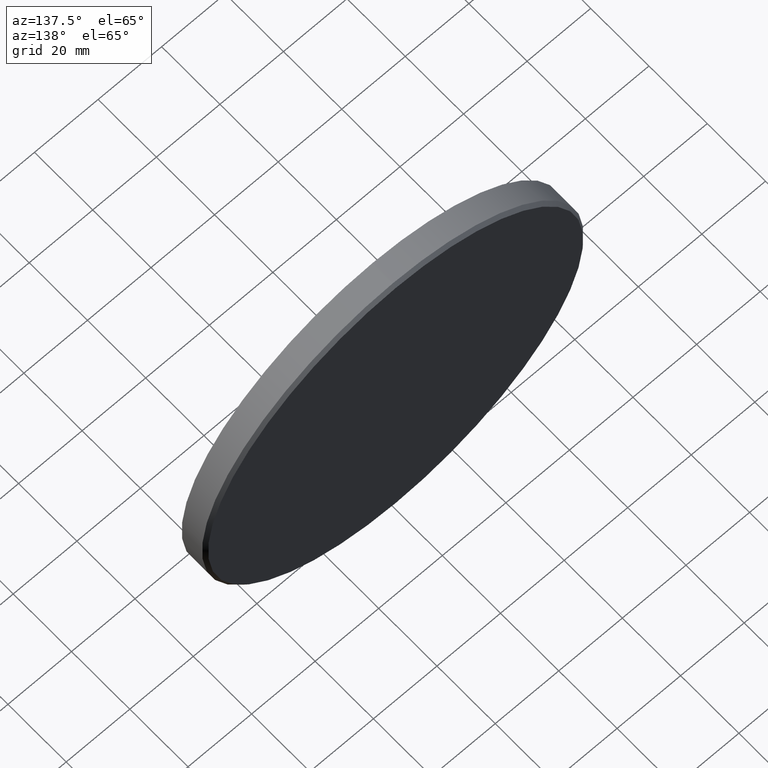
[diagram: clean part render]
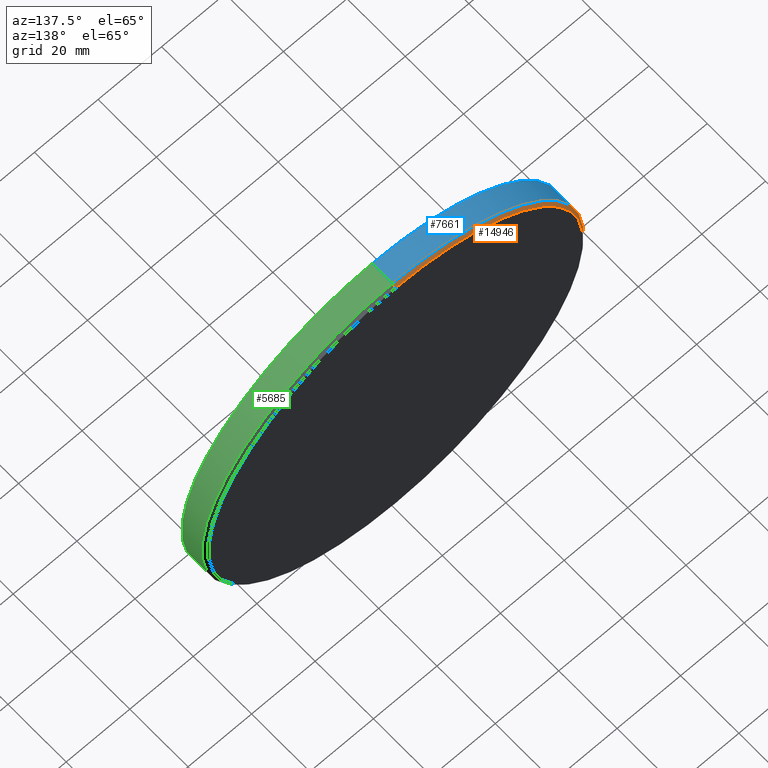
[diagram: same view with three faces highlighted in distinct colors, each labeled with its STEP entity id]
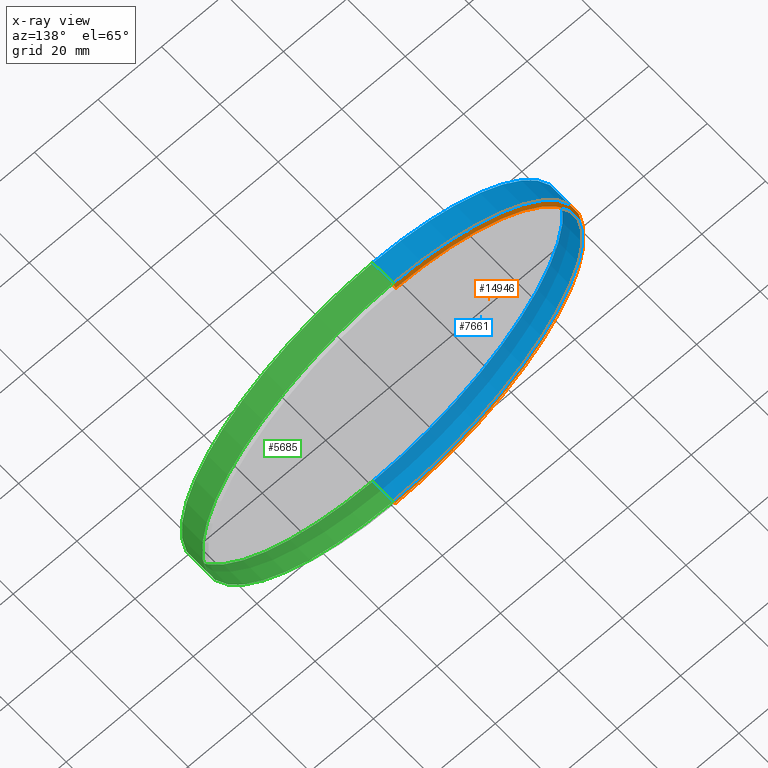
[diagram: x-ray of the same camera — body ghosted, the three highlighted faces saturated]
A machine part, auxiliary view with three faces highlighted in distinct colors.
The next image is the same camera in x-ray (body ghosted, the three faces saturated) — at least one of them is partly hidden behind the body in this view.
Their STEP definitions:

[orange] entity #14946 — the highlighted conical surface has half-angle 45 deg.
#217 = DIRECTION ( 'NONE',  ( 0.000000000000000000, 0.000000000000000000, 1.000000000000000000 ) ) ;
#1077 = CARTESIAN_POINT ( 'NONE',  ( 0.000000000000000000, 3.000000000000040856, -60.00000000000000000 ) ) ;
#1477 = CARTESIAN_POINT ( 'NONE',  ( 7.286648454926753937E-15, 4.000000000000000000, 59.00000000000003553 ) ) ;
#1669 = LINE ( 'NONE', #2837, #13851 ) ;
#1697 = VERTEX_POINT ( 'NONE', #1477 ) ;
#1824 = CARTESIAN_POINT ( 'NONE',  ( 0.000000000000000000, 4.000000000000000000, 0.000000000000000000 ) ) ;
#2472 = LINE ( 'NONE', #9759, #3395 ) ;
#2490 = DIRECTION ( 'NONE',  ( 0.000000000000000000, -0.7071067811865474617, -0.7071067811865474617 ) ) ;
#2603 = CARTESIAN_POINT ( 'NONE',  ( 0.000000000000000000, 3.000000000000040856, 0.000000000000000000 ) ) ;
#2658 = EDGE_CURVE ( 'NONE', #4591, #15570, #2472, .T. ) ;
#2685 = CIRCLE ( 'NONE', #9513, 59.00000000000003553 ) ;
#2837 = CARTESIAN_POINT ( 'NONE',  ( 7.225416114969387941E-15, 4.000000000000000000, 59.00000000000003553 ) ) ;
#3142 = DIRECTION ( 'NONE',  ( 0.000000000000000000, 1.000000000000000000, 0.000000000000000000 ) ) ;
#3393 = EDGE_CURVE ( 'NONE', #1697, #6006, #1669, .T. ) ;
#3395 = VECTOR ( 'NONE', #2490, 1000.000000000000114 ) ;
#3848 = ORIENTED_EDGE ( 'NONE', *, *, #3393, .F. ) ;
#3946 = EDGE_CURVE ( 'NONE', #6006, #15570, #15795, .T. ) ;
#4370 = CARTESIAN_POINT ( 'NONE',  ( 0.000000000000000000, 4.000000000000000000, -59.00000000000003553 ) ) ;
#4591 = VERTEX_POINT ( 'NONE', #4370 ) ;
#5224 = DIRECTION ( 'NONE',  ( 0.000000000000000000, 0.000000000000000000, -1.000000000000000000 ) ) ;
#5430 = DIRECTION ( 'NONE',  ( 0.000000000000000000, 0.000000000000000000, 1.000000000000000000 ) ) ;
#6006 = VERTEX_POINT ( 'NONE', #6279 ) ;
#6279 = CARTESIAN_POINT ( 'NONE',  ( 7.347880794884118356E-15, 3.000000000000040856, 60.00000000000000000 ) ) ;
#6545 = ORIENTED_EDGE ( 'NONE', *, *, #10636, .F. ) ;
#7044 = CONICAL_SURFACE ( 'NONE', #13632, 59.00000000000003553, 0.7853981633974482790 ) ;
#7684 = CARTESIAN_POINT ( 'NONE',  ( 0.000000000000000000, 4.000000000000000000, 0.000000000000000000 ) ) ;
#7835 = ORIENTED_EDGE ( 'NONE', *, *, #2658, .T. ) ;
#8784 = DIRECTION ( 'NONE',  ( 0.000000000000000000, -1.000000000000000000, 0.000000000000000000 ) ) ;
#9513 = AXIS2_PLACEMENT_3D ( 'NONE', #1824, #3142, #5430 ) ;
#9759 = CARTESIAN_POINT ( 'NONE',  ( 0.000000000000000000, 4.000000000000000000, -59.00000000000003553 ) ) ;
#10053 = AXIS2_PLACEMENT_3D ( 'NONE', #2603, #13564, #217 ) ;
#10543 = ORIENTED_EDGE ( 'NONE', *, *, #3946, .F. ) ;
#10636 = EDGE_CURVE ( 'NONE', #4591, #1697, #2685, .T. ) ;
#11377 = EDGE_LOOP ( 'NONE', ( #3848, #6545, #7835, #10543 ) ) ;
#11981 = FACE_OUTER_BOUND ( 'NONE', #11377, .T. ) ;
#12423 = DIRECTION ( 'NONE',  ( 8.659560562354932858E-17, -0.7071067811865474617, 0.7071067811865474617 ) ) ;
#13564 = DIRECTION ( 'NONE',  ( 0.000000000000000000, -1.000000000000000000, 0.000000000000000000 ) ) ;
#13632 = AXIS2_PLACEMENT_3D ( 'NONE', #7684, #8784, #5224 ) ;
#13851 = VECTOR ( 'NONE', #12423, 1000.000000000000114 ) ;
#14946 = ADVANCED_FACE ( 'NONE', ( #11981 ), #7044, .T. ) ;
#15570 = VERTEX_POINT ( 'NONE', #1077 ) ;
#15795 = CIRCLE ( 'NONE', #10053, 60.00000000000000000 ) ;

[blue] entity #7661 — the highlighted cylindrical surface (partial cylindrical patch) has radius 60 mm, axis along (-0, -1, -0).
#217 = DIRECTION ( 'NONE',  ( 0.000000000000000000, 0.000000000000000000, 1.000000000000000000 ) ) ;
#961 = VECTOR ( 'NONE', #6044, 1000.000000000000000 ) ;
#1077 = CARTESIAN_POINT ( 'NONE',  ( 0.000000000000000000, 3.000000000000040856, -60.00000000000000000 ) ) ;
#1327 = CARTESIAN_POINT ( 'NONE',  ( 7.347880794884118356E-15, -4.000000000000000000, 60.00000000000000000 ) ) ;
#1859 = LINE ( 'NONE', #5758, #14414 ) ;
#2017 = DIRECTION ( 'NONE',  ( 0.000000000000000000, 0.000000000000000000, -1.000000000000000000 ) ) ;
#2603 = CARTESIAN_POINT ( 'NONE',  ( 0.000000000000000000, 3.000000000000040856, 0.000000000000000000 ) ) ;
#2712 = EDGE_CURVE ( 'NONE', #6006, #2778, #8953, .T. ) ;
#2778 = VERTEX_POINT ( 'NONE', #1327 ) ;
#3946 = EDGE_CURVE ( 'NONE', #6006, #15570, #15795, .T. ) ;
#4275 = VERTEX_POINT ( 'NONE', #9485 ) ;
#4444 = DIRECTION ( 'NONE',  ( -0.000000000000000000, -1.000000000000000000, -0.000000000000000000 ) ) ;
#4655 = EDGE_CURVE ( 'NONE', #15570, #4275, #1859, .T. ) ;
#5096 = CARTESIAN_POINT ( 'NONE',  ( 7.347880794884118356E-15, 4.000000000000000000, 60.00000000000000000 ) ) ;
#5758 = CARTESIAN_POINT ( 'NONE',  ( 0.000000000000000000, 4.000000000000000000, -60.00000000000000000 ) ) ;
#5889 = CIRCLE ( 'NONE', #10472, 60.00000000000000000 ) ;
#6006 = VERTEX_POINT ( 'NONE', #6279 ) ;
#6044 = DIRECTION ( 'NONE',  ( -0.000000000000000000, -1.000000000000000000, -0.000000000000000000 ) ) ;
#6096 = ORIENTED_EDGE ( 'NONE', *, *, #4655, .T. ) ;
#6279 = CARTESIAN_POINT ( 'NONE',  ( 7.347880794884118356E-15, 3.000000000000040856, 60.00000000000000000 ) ) ;
#7661 = ADVANCED_FACE ( 'NONE', ( #9386 ), #10545, .T. ) ;
#7923 = EDGE_LOOP ( 'NONE', ( #9294, #13713, #6096, #12621 ) ) ;
#8547 = AXIS2_PLACEMENT_3D ( 'NONE', #9302, #4444, #2017 ) ;
#8953 = LINE ( 'NONE', #5096, #961 ) ;
#9294 = ORIENTED_EDGE ( 'NONE', *, *, #2712, .F. ) ;
#9302 = CARTESIAN_POINT ( 'NONE',  ( 0.000000000000000000, 4.000000000000000000, 0.000000000000000000 ) ) ;
#9386 = FACE_OUTER_BOUND ( 'NONE', #7923, .T. ) ;
#9485 = CARTESIAN_POINT ( 'NONE',  ( 0.000000000000000000, -4.000000000000000000, -60.00000000000000000 ) ) ;
#9756 = CARTESIAN_POINT ( 'NONE',  ( 0.000000000000000000, -4.000000000000000000, 0.000000000000000000 ) ) ;
#10053 = AXIS2_PLACEMENT_3D ( 'NONE', #2603, #13564, #217 ) ;
#10472 = AXIS2_PLACEMENT_3D ( 'NONE', #9756, #12171, #12223 ) ;
#10545 = CYLINDRICAL_SURFACE ( 'NONE', #8547, 60.00000000000000000 ) ;
#12171 = DIRECTION ( 'NONE',  ( 0.000000000000000000, 1.000000000000000000, 0.000000000000000000 ) ) ;
#12223 = DIRECTION ( 'NONE',  ( 0.000000000000000000, 0.000000000000000000, 1.000000000000000000 ) ) ;
#12621 = ORIENTED_EDGE ( 'NONE', *, *, #12646, .T. ) ;
#12646 = EDGE_CURVE ( 'NONE', #4275, #2778, #5889, .T. ) ;
#13564 = DIRECTION ( 'NONE',  ( 0.000000000000000000, -1.000000000000000000, 0.000000000000000000 ) ) ;
#13713 = ORIENTED_EDGE ( 'NONE', *, *, #3946, .T. ) ;
#14227 = DIRECTION ( 'NONE',  ( -0.000000000000000000, -1.000000000000000000, -0.000000000000000000 ) ) ;
#14414 = VECTOR ( 'NONE', #14227, 1000.000000000000000 ) ;
#15570 = VERTEX_POINT ( 'NONE', #1077 ) ;
#15795 = CIRCLE ( 'NONE', #10053, 60.00000000000000000 ) ;

[green] entity #5685 — the highlighted cylindrical surface (partial cylindrical patch) has radius 60 mm, axis along (-0, -1, -0).
#672 = DIRECTION ( 'NONE',  ( -0.000000000000000000, -1.000000000000000000, -0.000000000000000000 ) ) ;
#961 = VECTOR ( 'NONE', #6044, 1000.000000000000000 ) ;
#1077 = CARTESIAN_POINT ( 'NONE',  ( 0.000000000000000000, 3.000000000000040856, -60.00000000000000000 ) ) ;
#1124 = CARTESIAN_POINT ( 'NONE',  ( 0.000000000000000000, -4.000000000000000000, 0.000000000000000000 ) ) ;
#1256 = CYLINDRICAL_SURFACE ( 'NONE', #1318, 60.00000000000000000 ) ;
#1318 = AXIS2_PLACEMENT_3D ( 'NONE', #5548, #672, #9155 ) ;
#1327 = CARTESIAN_POINT ( 'NONE',  ( 7.347880794884118356E-15, -4.000000000000000000, 60.00000000000000000 ) ) ;
#1859 = LINE ( 'NONE', #5758, #14414 ) ;
#2331 = DIRECTION ( 'NONE',  ( 0.000000000000000000, 1.000000000000000000, 0.000000000000000000 ) ) ;
#2712 = EDGE_CURVE ( 'NONE', #6006, #2778, #8953, .T. ) ;
#2778 = VERTEX_POINT ( 'NONE', #1327 ) ;
#3324 = ORIENTED_EDGE ( 'NONE', *, *, #3347, .T. ) ;
#3347 = EDGE_CURVE ( 'NONE', #15570, #6006, #7021, .T. ) ;
#3649 = DIRECTION ( 'NONE',  ( 0.000000000000000000, 0.000000000000000000, 1.000000000000000000 ) ) ;
#4275 = VERTEX_POINT ( 'NONE', #9485 ) ;
#4655 = EDGE_CURVE ( 'NONE', #15570, #4275, #1859, .T. ) ;
#4868 = ORIENTED_EDGE ( 'NONE', *, *, #2712, .T. ) ;
#5096 = CARTESIAN_POINT ( 'NONE',  ( 7.347880794884118356E-15, 4.000000000000000000, 60.00000000000000000 ) ) ;
#5323 = ORIENTED_EDGE ( 'NONE', *, *, #14456, .T. ) ;
#5548 = CARTESIAN_POINT ( 'NONE',  ( 0.000000000000000000, 4.000000000000000000, 0.000000000000000000 ) ) ;
#5685 = ADVANCED_FACE ( 'NONE', ( #6977 ), #1256, .T. ) ;
#5758 = CARTESIAN_POINT ( 'NONE',  ( 0.000000000000000000, 4.000000000000000000, -60.00000000000000000 ) ) ;
#6006 = VERTEX_POINT ( 'NONE', #6279 ) ;
#6044 = DIRECTION ( 'NONE',  ( -0.000000000000000000, -1.000000000000000000, -0.000000000000000000 ) ) ;
#6246 = DIRECTION ( 'NONE',  ( 0.000000000000000000, 0.000000000000000000, 1.000000000000000000 ) ) ;
#6279 = CARTESIAN_POINT ( 'NONE',  ( 7.347880794884118356E-15, 3.000000000000040856, 60.00000000000000000 ) ) ;
#6977 = FACE_OUTER_BOUND ( 'NONE', #11413, .T. ) ;
#7021 = CIRCLE ( 'NONE', #11193, 60.00000000000000000 ) ;
#7224 = CIRCLE ( 'NONE', #10666, 60.00000000000000000 ) ;
#8953 = LINE ( 'NONE', #5096, #961 ) ;
#9155 = DIRECTION ( 'NONE',  ( 0.000000000000000000, 0.000000000000000000, -1.000000000000000000 ) ) ;
#9485 = CARTESIAN_POINT ( 'NONE',  ( 0.000000000000000000, -4.000000000000000000, -60.00000000000000000 ) ) ;
#10666 = AXIS2_PLACEMENT_3D ( 'NONE', #1124, #2331, #3649 ) ;
#11193 = AXIS2_PLACEMENT_3D ( 'NONE', #14619, #14731, #6246 ) ;
#11413 = EDGE_LOOP ( 'NONE', ( #3324, #4868, #5323, #15753 ) ) ;
#14227 = DIRECTION ( 'NONE',  ( -0.000000000000000000, -1.000000000000000000, -0.000000000000000000 ) ) ;
#14414 = VECTOR ( 'NONE', #14227, 1000.000000000000000 ) ;
#14456 = EDGE_CURVE ( 'NONE', #2778, #4275, #7224, .T. ) ;
#14619 = CARTESIAN_POINT ( 'NONE',  ( 0.000000000000000000, 3.000000000000040856, 0.000000000000000000 ) ) ;
#14731 = DIRECTION ( 'NONE',  ( 0.000000000000000000, -1.000000000000000000, 0.000000000000000000 ) ) ;
#15570 = VERTEX_POINT ( 'NONE', #1077 ) ;
#15753 = ORIENTED_EDGE ( 'NONE', *, *, #4655, .F. ) ;